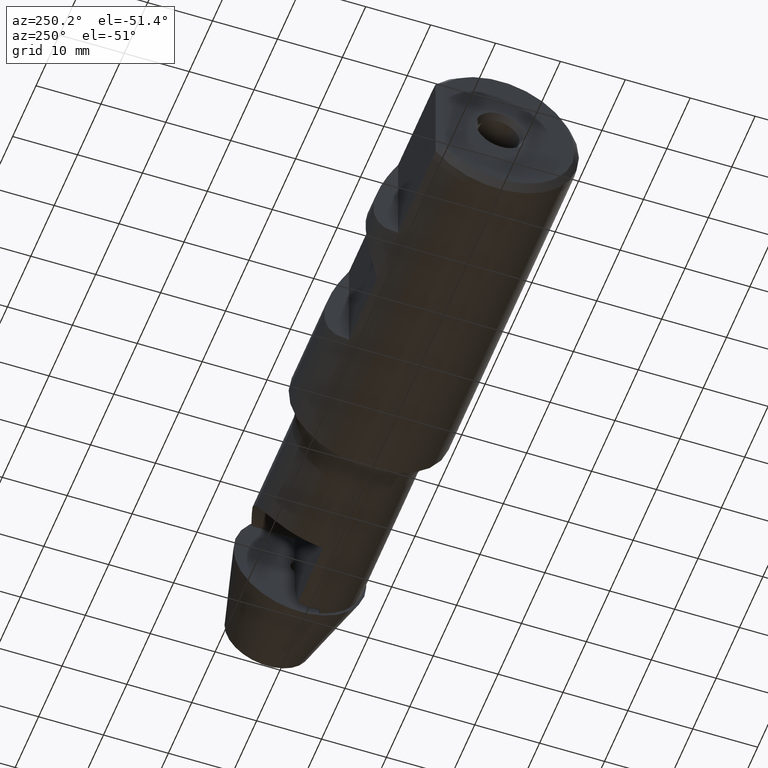
[diagram: clean part render]
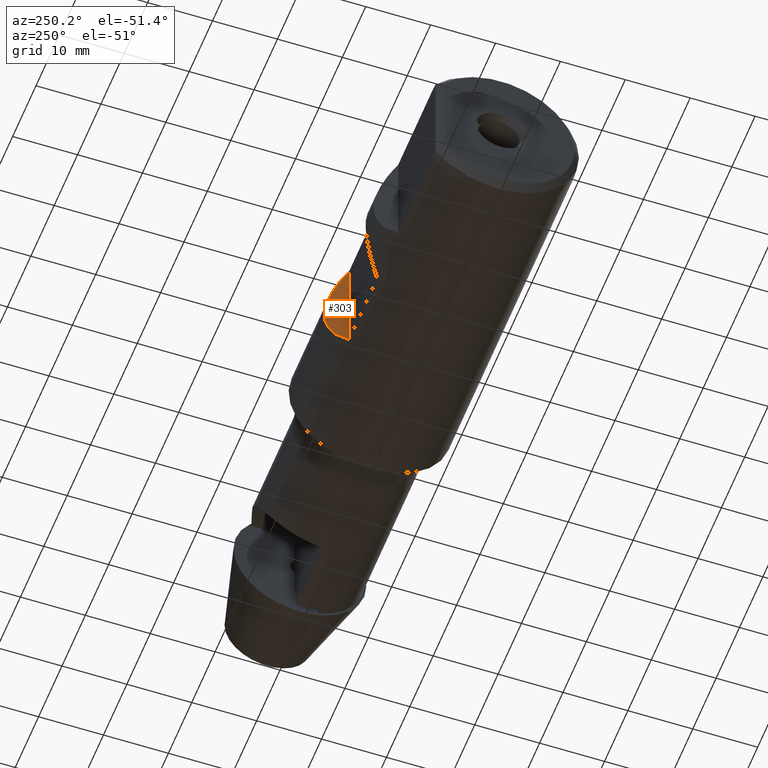
[diagram: same view with one face highlighted and labeled with its STEP entity id]
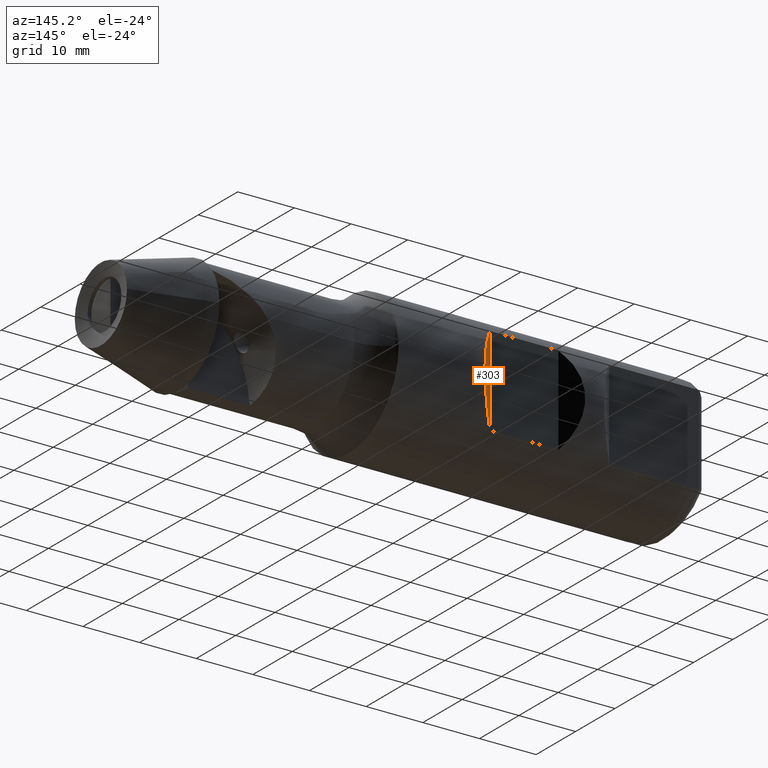
[diagram: same view with one face highlighted and labeled with its STEP entity id]
A machine part, auxiliary view. The second image highlights one B-rep face of the part: STEP entity #303.
A second angle (auxiliary view) of the same face is appended — the face is thin or edge-on in the first view.
In plain terms, the highlighted planar face has unit normal (-0.7071, 0.7071, 0).
Its self-contained STEP definition (entity closure, byte-faithful):
#26 = DIRECTION ( 'NONE',  ( -0.7071067811865456900, -0.7071067811865493500, 0.0000000000000000000 ) ) ;
#128 =( BOUNDED_CURVE ( )  B_SPLINE_CURVE ( 3, ( #476, #872, #539, #1132 ),
 .UNSPECIFIED., .F., .F. ) 
 B_SPLINE_CURVE_WITH_KNOTS ( ( 4, 4 ),
 ( 5.600687989903614800, 6.965682624455559400 ),
 .UNSPECIFIED. ) 
 CURVE ( )  GEOMETRIC_REPRESENTATION_ITEM ( )  RATIONAL_B_SPLINE_CURVE ( ( 1.000000000000000000, 0.8506666666666664600, 0.8506666666666664600, 1.000000000000000000 ) ) 
 REPRESENTATION_ITEM ( '' )  );
#138 = ORIENTED_EDGE ( 'NONE', *, *, #1193, .F. ) ;
#203 = CARTESIAN_POINT ( 'NONE',  ( -66.44999999999998900, 9.699999999999990400, -7.884161337770806600 ) ) ;
#209 = EDGE_CURVE ( 'NONE', #1040, #652, #128, .T. ) ;
#217 = VECTOR ( 'NONE', #431, 1000.000000000000000 ) ;
#236 = FACE_OUTER_BOUND ( 'NONE', #683, .T. ) ;
#247 = AXIS2_PLACEMENT_3D ( 'NONE', #917, #608, #26 ) ;
#303 = ADVANCED_FACE ( 'NONE', ( #236 ), #912, .T. ) ;
#431 = DIRECTION ( 'NONE',  ( 0.0000000000000000000, 0.0000000000000000000, -1.000000000000000000 ) ) ;
#437 = LINE ( 'NONE', #827, #217 ) ;
#476 = CARTESIAN_POINT ( 'NONE',  ( -66.44999999999998900, 9.699999999999990400, -7.884161337770806600 ) ) ;
#539 = CARTESIAN_POINT ( 'NONE',  ( -62.55282131661444100, 13.59717868338557200, 3.089404912919613700 ) ) ;
#608 = DIRECTION ( 'NONE',  ( -0.7071067811865493500, 0.7071067811865456900, 0.0000000000000000000 ) ) ;
#652 = VERTEX_POINT ( 'NONE', #881 ) ;
#683 = EDGE_LOOP ( 'NONE', ( #1085, #138 ) ) ;
#827 = CARTESIAN_POINT ( 'NONE',  ( -66.44999999999998900, 9.699999999999990400, 10.00000000000000000 ) ) ;
#872 = CARTESIAN_POINT ( 'NONE',  ( -62.55282131661444100, 13.59717868338558100, -3.089404912919593700 ) ) ;
#881 = CARTESIAN_POINT ( 'NONE',  ( -66.44999999999998900, 9.699999999999990400, 7.884161337770812000 ) ) ;
#912 = PLANE ( 'NONE',  #247 ) ;
#917 = CARTESIAN_POINT ( 'NONE',  ( -63.55000000000001100, 12.59999999999999100, 10.00000000000000000 ) ) ;
#1040 = VERTEX_POINT ( 'NONE', #203 ) ;
#1085 = ORIENTED_EDGE ( 'NONE', *, *, #209, .F. ) ;
#1132 = CARTESIAN_POINT ( 'NONE',  ( -66.44999999999998900, 9.699999999999990400, 7.884161337770812000 ) ) ;
#1193 = EDGE_CURVE ( 'NONE', #652, #1040, #437, .T. ) ;